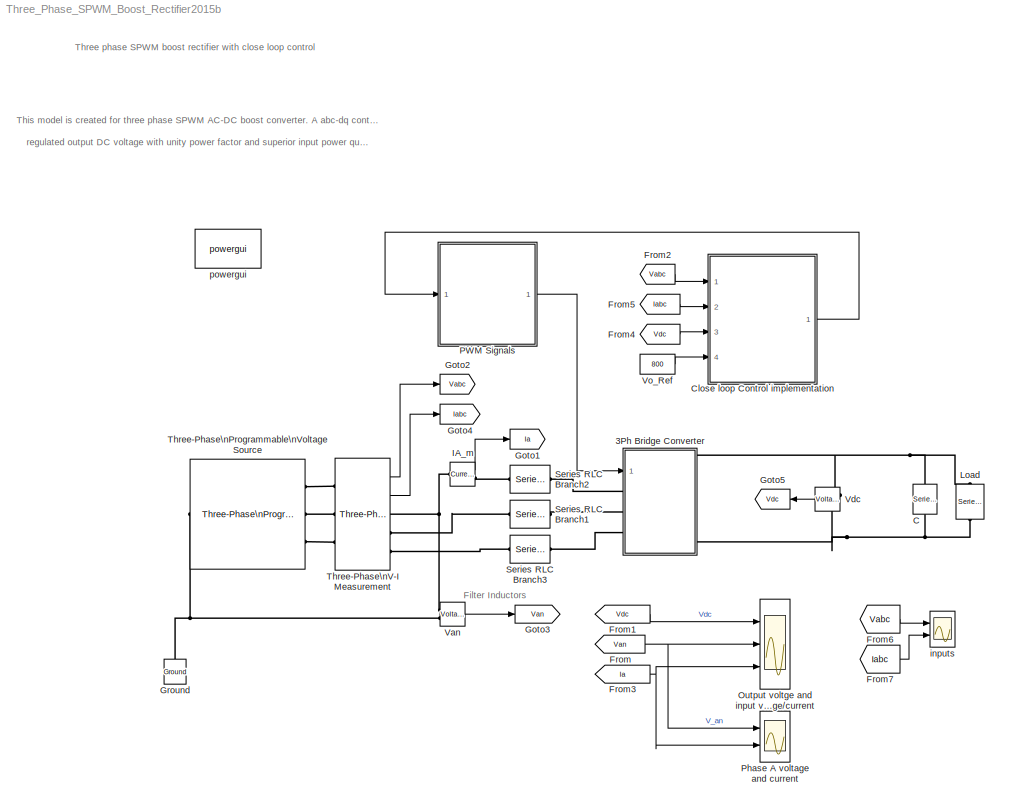
MODEL Three_Phase_SPWM_Boost_Rectifier2015b
KIND model
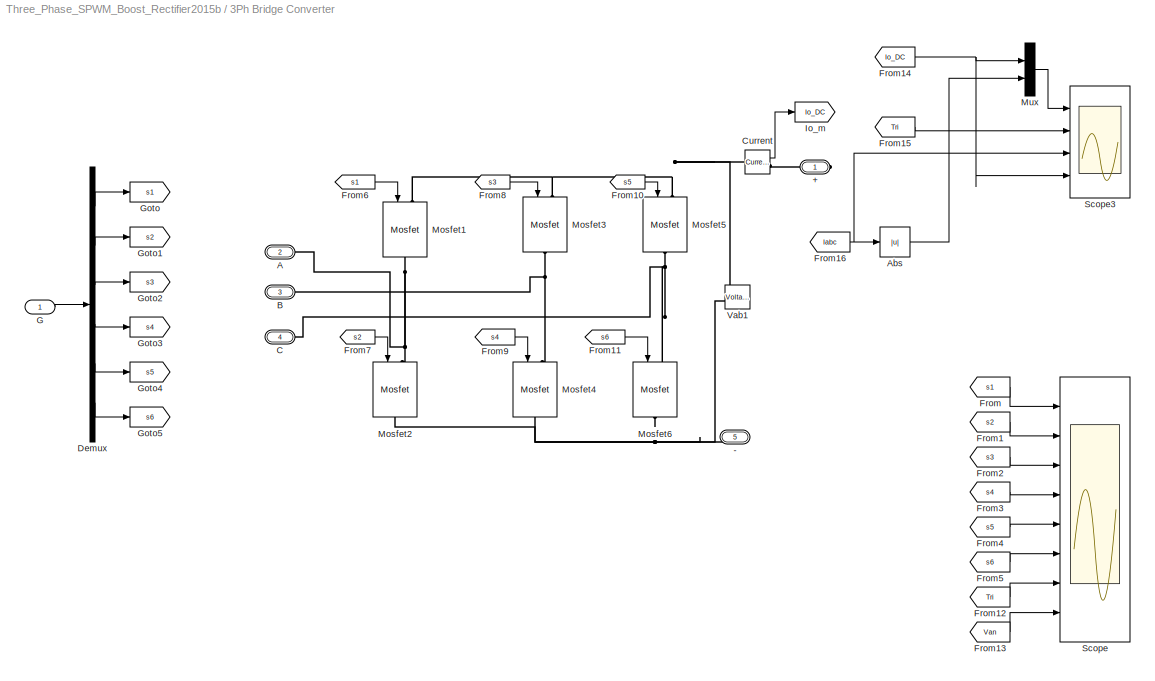
BLOCK [SubSystem] 3Ph Bridge Converter
  Ports = [1, 0, 0, 0, 0, 3, 2]
  RequestExecContextInheritance = off
  SID = 356
  Variant = off
BLOCK [PMIOPort] 3Ph Bridge Converter/+
  Port = 1
  SID = 377
  Side = Right
BLOCK [PMIOPort] 3Ph Bridge Converter/-
  Port = 5
  SID = 573
  Side = Right
BLOCK [PMIOPort] 3Ph Bridge Converter/A
  Port = 2
  SID = 378
  Side = Left
BLOCK [Abs] 3Ph Bridge Converter/Abs
  SID = 713
  SaturateOnIntegerOverflow = off
BLOCK [PMIOPort] 3Ph Bridge Converter/B
  Port = 3
  SID = 379
  Side = Left
BLOCK [PMIOPort] 3Ph Bridge Converter/C
  Port = 4
  SID = 380
  Side = Left
BLOCK [Reference] 3Ph Bridge Converter/Current  REF=powerlib/Measurements/Current Measurement
  OutputType = Complex
  PSBequivalent = 0
  PhasorSimulation = off
  Ports = [0, 1, 0, 0, 0, 1, 1]
  SID = 619
  SourceBlock = powerlib/Measurements/Current Measurement
  SourceType = Current Measurement
BLOCK [Demux] 3Ph Bridge Converter/Demux
  DisplayOption = bar
  Outputs = 6
  Ports = [1, 6]
  SID = 358
BLOCK [From] 3Ph Bridge Converter/From
  GotoTag = s1
  SID = 698
BLOCK [From] 3Ph Bridge Converter/From1
  GotoTag = s2
  SID = 699
BLOCK [From] 3Ph Bridge Converter/From10
  CloseFcn = tagdialog Close
  GotoTag = s5
  SID = 359
BLOCK [From] 3Ph Bridge Converter/From11
  CloseFcn = tagdialog Close
  GotoTag = s6
  SID = 360
BLOCK [From] 3Ph Bridge Converter/From12
  GotoTag = Tri
  SID = 705
  TagVisibility = global
BLOCK [From] 3Ph Bridge Converter/From13
  GotoTag = Van
  SID = 706
  TagVisibility = global
BLOCK [From] 3Ph Bridge Converter/From14
  GotoTag = Io_DC
  SID = 708
BLOCK [From] 3Ph Bridge Converter/From15
  GotoTag = Tri
  SID = 709
  TagVisibility = global
BLOCK [From] 3Ph Bridge Converter/From16
  GotoTag = Iabc
  SID = 710
  TagVisibility = global
BLOCK [From] 3Ph Bridge Converter/From2
  GotoTag = s3
  SID = 700
BLOCK [From] 3Ph Bridge Converter/From3
  GotoTag = s4
  SID = 701
BLOCK [From] 3Ph Bridge Converter/From4
  GotoTag = s5
  SID = 702
BLOCK [From] 3Ph Bridge Converter/From5
  GotoTag = s6
  SID = 703
BLOCK [From] 3Ph Bridge Converter/From6
  CloseFcn = tagdialog Close
  GotoTag = s1
  SID = 361
BLOCK [From] 3Ph Bridge Converter/From7
  CloseFcn = tagdialog Close
  GotoTag = s2
  SID = 362
BLOCK [From] 3Ph Bridge Converter/From8
  CloseFcn = tagdialog Close
  GotoTag = s3
  SID = 363
BLOCK [From] 3Ph Bridge Converter/From9
  CloseFcn = tagdialog Close
  GotoTag = s4
  SID = 364
BLOCK [Inport] 3Ph Bridge Converter/G
  IconDisplay = Port number
  SID = 357
BLOCK [Goto] 3Ph Bridge Converter/Goto
  GotoTag = s1
  SID = 365
BLOCK [Goto] 3Ph Bridge Converter/Goto1
  GotoTag = s2
  SID = 366
BLOCK [Goto] 3Ph Bridge Converter/Goto2
  GotoTag = s3
  SID = 367
BLOCK [Goto] 3Ph Bridge Converter/Goto3
  GotoTag = s4
  SID = 368
BLOCK [Goto] 3Ph Bridge Converter/Goto4
  GotoTag = s5
  SID = 369
BLOCK [Goto] 3Ph Bridge Converter/Goto5
  GotoTag = s6
  SID = 370
BLOCK [Goto] 3Ph Bridge Converter/Io_m
  GotoTag = Io_DC
  SID = 652
BLOCK [Reference] 3Ph Bridge Converter/Mosfet1  REF=powerlib/Power\nElectronics/Mosfet
  Cs = inf
  IC = 0
  Lon = 0
  Measurements = off
  Ports = [1, 0, 0, 0, 0, 1, 1]
  Rd = 0.01
  Ron = 0.1
  Rs = 1e5
  SID = 371
  SourceBlock = powerlib/Power\nElectronics/Mosfet
  SourceType = Mosfet
  Vfd = 0
BLOCK [Reference] 3Ph Bridge Converter/Mosfet2  REF=powerlib/Power\nElectronics/Mosfet
  Cs = inf
  IC = 0
  Lon = 0
  Measurements = off
  Ports = [1, 0, 0, 0, 0, 1, 1]
  Rd = 0.01
  Ron = 0.1
  Rs = 1e5
  SID = 372
  SourceBlock = powerlib/Power\nElectronics/Mosfet
  SourceType = Mosfet
  Vfd = 0
BLOCK [Reference] 3Ph Bridge Converter/Mosfet3  REF=powerlib/Power\nElectronics/Mosfet
  Cs = inf
  IC = 0
  Lon = 0
  Measurements = off
  Ports = [1, 0, 0, 0, 0, 1, 1]
  Rd = 0.01
  Ron = 0.1
  Rs = 1e5
  SID = 375
  SourceBlock = powerlib/Power\nElectronics/Mosfet
  SourceType = Mosfet
  Vfd = 0
BLOCK [Reference] 3Ph Bridge Converter/Mosfet4  REF=powerlib/Power\nElectronics/Mosfet
  Cs = inf
  IC = 0
  Lon = 0
  Measurements = off
  Ports = [1, 0, 0, 0, 0, 1, 1]
  Rd = 0.01
  Ron = 0.1
  Rs = 1e5
  SID = 376
  SourceBlock = powerlib/Power\nElectronics/Mosfet
  SourceType = Mosfet
  Vfd = 0
BLOCK [Reference] 3Ph Bridge Converter/Mosfet5  REF=powerlib/Power\nElectronics/Mosfet
  Cs = inf
  IC = 0
  Lon = 0
  Measurements = off
  Ports = [1, 0, 0, 0, 0, 1, 1]
  Rd = 0.01
  Ron = 0.1
  Rs = 1e5
  SID = 374
  SourceBlock = powerlib/Power\nElectronics/Mosfet
  SourceType = Mosfet
  Vfd = 0
BLOCK [Reference] 3Ph Bridge Converter/Mosfet6  REF=powerlib/Power\nElectronics/Mosfet
  Cs = inf
  IC = 0
  Lon = 0
  Measurements = off
  Ports = [1, 0, 0, 0, 0, 1, 1]
  Rd = 0.01
  Ron = 0.1
  Rs = 1e5
  SID = 373
  SourceBlock = powerlib/Power\nElectronics/Mosfet
  SourceType = Mosfet
  Vfd = 0
BLOCK [Mux] 3Ph Bridge Converter/Mux
  DisplayOption = bar
  Inputs = 2
  Ports = [2, 1]
  SID = 712
BLOCK [Scope] 3Ph Bridge Converter/Scope
  NumInputPorts = 8
  Ports = [8]
  SID = 697
  ScopeSpecificationString = Simulink.scopes.TimeScopeBlockCfg('CurrentConfiguration', extmgr.ConfigurationSet(extmgr.Configuration('Core','General UI',true,'FigureColor',[0.156862745098039 0.156862745098039 0.156862745098039]),extmgr.Configuration('Core','Source UI',true),extmgr.Configuration('Sources','WiredSimulink',true,'DataLoggingVariableName','ScopeData6','DataLoggingSaveFormat','StructureWithTime','DataLoggingMaxPoint...<+11269ch>
BLOCK [Scope] 3Ph Bridge Converter/Scope3
  NumInputPorts = 4
  Ports = [4]
  SID = 707
  ScopeSpecificationString = Simulink.scopes.TimeScopeBlockCfg('CurrentConfiguration', extmgr.ConfigurationSet(extmgr.Configuration('Core','General UI',true,'FigureColor',[0.156862745098039 0.156862745098039 0.156862745098039]),extmgr.Configuration('Core','Source UI',true),extmgr.Configuration('Sources','WiredSimulink',true,'DataLoggingVariableName','ScopeData10','DataLoggingSaveFormat','StructureWithTime','DataLoggingMaxPoin...<+6465ch>
BLOCK [Reference] 3Ph Bridge Converter/Vab1  REF=powerlib/Measurements/Voltage Measurement
  AttributesFormatString = \\n
  OutputType = Magnitude
  PSBequivalent = 0
  PhasorSimulation = off
  Ports = [0, 1, 0, 0, 0, 2]
  SID = 711
  SourceBlock = powerlib/Measurements/Voltage Measurement
  SourceType = Voltage Measurement
  Tag = PoWeRsYsTeMmEaSuReMeNt
BLOCK [Reference] C  REF=powerlib/Elements/Series RLC Branch
  BranchType = C
  Capacitance = 1000e-6
  Inductance = 1e-3
  InitialCurrent = 0
  InitialVoltage = 0
  LConnTagsString = __new0
  Measurements = None
  Ports = [0, 0, 0, 0, 0, 1, 1]
  RConnTagsString = __new0
  Resistance = 1
  SID = 578
  SetiL0 = off
  Setx0 = off
  SourceBlock = powerlib/Elements/Series RLC Branch
  SourceType = Series RLC Branch
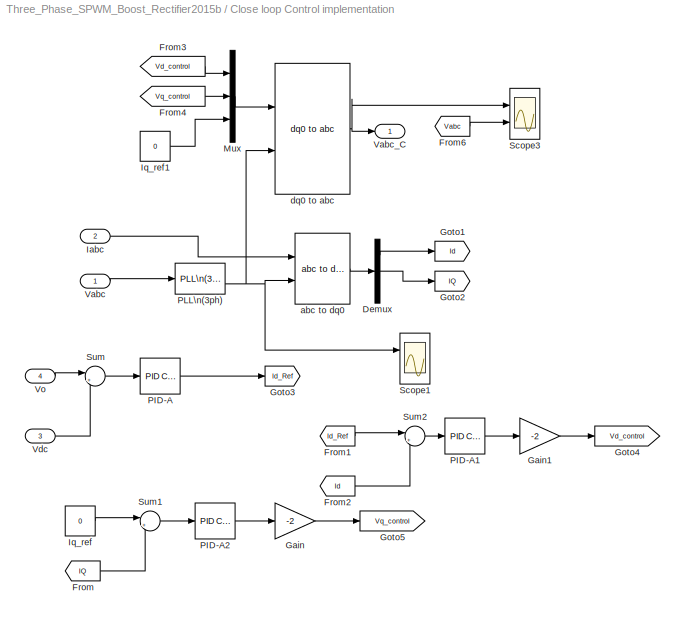
BLOCK [SubSystem] Close loop Control implementation
  Ports = [4, 1]
  RequestExecContextInheritance = off
  SID = 656
  Variant = off
BLOCK [Demux] Close loop Control implementation/Demux
  DisplayOption = bar
  Outputs = 3
  Ports = [1, 3]
  SID = 664
BLOCK [From] Close loop Control implementation/From
  GotoTag = IQ
  SID = 673
  TagVisibility = global
BLOCK [From] Close loop Control implementation/From1
  GotoTag = Id_Ref
  SID = 676
  TagVisibility = global
BLOCK [From] Close loop Control implementation/From2
  GotoTag = Id
  SID = 677
  TagVisibility = global
BLOCK [From] Close loop Control implementation/From3
  GotoTag = Vd_control
  SID = 682
  TagVisibility = global
BLOCK [From] Close loop Control implementation/From4
  GotoTag = Vq_control
  SID = 683
  TagVisibility = global
BLOCK [From] Close loop Control implementation/From6
  GotoTag = Vabc
  SID = 694
  TagVisibility = global
BLOCK [Gain] Close loop Control implementation/Gain
  Gain = -2
  OutDataTypeStr = Inherit: Inherit via internal rule
  ParamDataTypeStr = Inherit: Inherit via internal rule
  SID = 691
  SaturateOnIntegerOverflow = off
BLOCK [Gain] Close loop Control implementation/Gain1
  Gain = -2
  OutDataTypeStr = Inherit: Inherit via internal rule
  ParamDataTypeStr = Inherit: Inherit via internal rule
  SID = 692
  SaturateOnIntegerOverflow = off
BLOCK [Goto] Close loop Control implementation/Goto1
  GotoTag = Id
  SID = 665
  TagVisibility = global
BLOCK [Goto] Close loop Control implementation/Goto2
  GotoTag = IQ
  SID = 666
  TagVisibility = global
BLOCK [Goto] Close loop Control implementation/Goto3
  GotoTag = Id_Ref
  SID = 670
  TagVisibility = global
BLOCK [Goto] Close loop Control implementation/Goto4
  GotoTag = Vd_control
  SID = 679
  TagVisibility = global
BLOCK [Goto] Close loop Control implementation/Goto5
  GotoTag = Vq_control
  SID = 680
  TagVisibility = global
BLOCK [Inport] Close loop Control implementation/Iabc
  IconDisplay = Port number
  Port = 2
  SID = 663
BLOCK [Constant] Close loop Control implementation/Iq_ref
  SID = 672
  Value = 0
BLOCK [Constant] Close loop Control implementation/Iq_ref1
  SID = 684
  Value = 0
BLOCK [Mux] Close loop Control implementation/Mux
  DisplayOption = bar
  Inputs = 3
  Ports = [3, 1]
  SID = 681
BLOCK [Reference] Close loop Control implementation/PID-A  REF=simulink/Continuous/PID Controller
  AntiWindupMode = none
  Controller = PID
  ControllerParametersSource = internal
  D = 0
  DGainOutDataTypeStr = Inherit: Inherit via internal rule
  DOutDataTypeStr = Inherit: Inherit via internal rule
  DOutMax = []
  DOutMin = []
  DParamDataTypeStr = Inherit: Inherit via internal rule
  DParamMax = []
  DParamMin = []
  DProdOutDataTypeStr = Inherit: Inherit via internal rule
  DifferentiatorICPrevScaledInput = 0
  DifferentiatorOutDataTypeStr = Inherit: Inherit via internal rule
  DifferentiatorOutMax = []
  DifferentiatorOutMin = []
  ExternalReset = none
  FilterContinuousStateAttributes = ''
  FilterMethod = Forward Euler
  FilterOutDataTypeStr = Inherit: Inherit via internal rule
  FilterOutMax = []
  FilterOutMin = []
  FilterRTWStateStorageClass = Auto
  FilterStateMustResolveToSignalObject = off
  Form = Parallel
  I = 0.2/0.002
  IGainOutDataTypeStr = Inherit: Inherit via internal rule
  IOutDataTypeStr = Inherit: Inherit via internal rule
  IOutMax = []
  IOutMin = []
  IParamDataTypeStr = Inherit: Inherit via internal rule
  IParamMax = []
  IParamMin = []
  IProdOutDataTypeStr = Inherit: Inherit via internal rule
  IgnoreLimit = off
  InitialConditionForFilter = 0
  InitialConditionForIntegrator = 0
  InitialConditionSource = internal
  IntegratorContinuousStateAttributes = ''
  IntegratorMethod = Forward Euler
  IntegratorOutDataTypeStr = Inherit: Inherit via internal rule
  IntegratorOutMax = []
  IntegratorOutMin = []
  IntegratorRTWStateStorageClass = Auto
  IntegratorStateMustResolveToSignalObject = off
  Kb = 1
  KbOutDataTypeStr = Inherit: Inherit via internal rule
  KbOutMax = []
  KbOutMin = []
  KbParamDataTypeStr = Inherit: Inherit via internal rule
  KbParamMax = []
  KbParamMin = []
  Kt = 1
  KtOutDataTypeStr = Inherit: Inherit via internal rule
  KtOutMax = []
  KtOutMin = []
  KtParamDataTypeStr = Inherit: Inherit via internal rule
  KtParamMax = []
  KtParamMin = []
  LimitOutput = off
  LinearizeAsGain = on
  LockScale = off
  LowerSaturationLimit = -inf
  N = 100
  NGainOutDataTypeStr = Inherit: Inherit via internal rule
  NOutDataTypeStr = Inherit: Inherit via internal rule
  NOutMax = []
  NOutMin = []
  NParamDataTypeStr = Inherit: Inherit via internal rule
  NParamMax = []
  NParamMin = []
  NProdOutDataTypeStr = Inherit: Inherit via internal rule
  P = 0.2
  PGainOutDataTypeStr = Inherit: Inherit via internal rule
  POutDataTypeStr = Inherit: Inherit via internal rule
  POutMax = []
  POutMin = []
  PParamDataTypeStr = Inherit: Inherit via internal rule
  PParamMax = []
  PParamMin = []
  PProdOutDataTypeStr = Inherit: Inherit via internal rule
  Ports = [1, 1]
  RndMeth = Floor
  SID = 662
  SampleTime = 2e-6
  SaturateOnIntegerOverflow = off
  SaturationOutDataTypeStr = Inherit: Same as input
  SaturationOutMax = []
  SaturationOutMin = []
  SourceBlock = simulink/Continuous/PID Controller
  SourceType = PID 1dof
  SumAccumDataTypeStr = Inherit: Inherit via internal rule
  SumDAccumDataTypeStr = Inherit: Inherit via internal rule
  SumDOutDataTypeStr = Inherit: Inherit via internal rule
  SumDOutMax = []
  SumDOutMin = []
  SumI1AccumDataTypeStr = Inherit: Inherit via internal rule
  SumI1OutDataTypeStr = Inherit: Inherit via internal rule
  SumI1OutMax = []
  SumI1OutMin = []
  SumI2AccumDataTypeStr = Inherit: Inherit via internal rule
  SumI2OutDataTypeStr = Inherit: Inherit via internal rule
  SumI2OutMax = []
  SumI2OutMin = []
  SumI3AccumDataTypeStr = Inherit: Inherit via internal rule
  SumI3OutDataTypeStr = Inherit: Inherit via internal rule
  SumI3OutMax = []
  SumI3OutMin = []
  SumOutDataTypeStr = Inherit: Inherit via internal rule
  SumOutMax = []
  SumOutMin = []
  TimeDomain = Discrete-time
  TrackingMode = off
  UpperSaturationLimit = inf
  UseFilter = on
  ZeroCross = on
BLOCK [Reference] Close loop Control implementation/PID-A1  REF=simulink/Continuous/PID Controller
  AntiWindupMode = none
  Controller = PID
  ControllerParametersSource = internal
  D = 0
  DGainOutDataTypeStr = Inherit: Inherit via internal rule
  DOutDataTypeStr = Inherit: Inherit via internal rule
  DOutMax = []
  DOutMin = []
  DParamDataTypeStr = Inherit: Inherit via internal rule
  DParamMax = []
  DParamMin = []
  DProdOutDataTypeStr = Inherit: Inherit via internal rule
  DifferentiatorICPrevScaledInput = 0
  DifferentiatorOutDataTypeStr = Inherit: Inherit via internal rule
  DifferentiatorOutMax = []
  DifferentiatorOutMin = []
  ExternalReset = none
  FilterContinuousStateAttributes = ''
  FilterMethod = Forward Euler
  FilterOutDataTypeStr = Inherit: Inherit via internal rule
  FilterOutMax = []
  FilterOutMin = []
  FilterRTWStateStorageClass = Auto
  FilterStateMustResolveToSignalObject = off
  Form = Parallel
  I = 0.0231/1.172e-3
  IGainOutDataTypeStr = Inherit: Inherit via internal rule
  IOutDataTypeStr = Inherit: Inherit via internal rule
  IOutMax = []
  IOutMin = []
  IParamDataTypeStr = Inherit: Inherit via internal rule
  IParamMax = []
  IParamMin = []
  IProdOutDataTypeStr = Inherit: Inherit via internal rule
  IgnoreLimit = off
  InitialConditionForFilter = 0
  InitialConditionForIntegrator = 0
  InitialConditionSource = internal
  IntegratorContinuousStateAttributes = ''
  IntegratorMethod = Forward Euler
  IntegratorOutDataTypeStr = Inherit: Inherit via internal rule
  IntegratorOutMax = []
  IntegratorOutMin = []
  IntegratorRTWStateStorageClass = Auto
  IntegratorStateMustResolveToSignalObject = off
  Kb = 1
  KbOutDataTypeStr = Inherit: Inherit via internal rule
  KbOutMax = []
  KbOutMin = []
  KbParamDataTypeStr = Inherit: Inherit via internal rule
  KbParamMax = []
  KbParamMin = []
  Kt = 1
  KtOutDataTypeStr = Inherit: Inherit via internal rule
  KtOutMax = []
  KtOutMin = []
  KtParamDataTypeStr = Inherit: Inherit via internal rule
  KtParamMax = []
  KtParamMin = []
  LimitOutput = off
  LinearizeAsGain = on
  LockScale = off
  LowerSaturationLimit = -inf
  N = 100
  NGainOutDataTypeStr = Inherit: Inherit via internal rule
  NOutDataTypeStr = Inherit: Inherit via internal rule
  NOutMax = []
  NOutMin = []
  NParamDataTypeStr = Inherit: Inherit via internal rule
  NParamMax = []
  NParamMin = []
  NProdOutDataTypeStr = Inherit: Inherit via internal rule
  P = 6.225/270
  PGainOutDataTypeStr = Inherit: Inherit via internal rule
  POutDataTypeStr = Inherit: Inherit via internal rule
  POutMax = []
  POutMin = []
  PParamDataTypeStr = Inherit: Inherit via internal rule
  PParamMax = []
  PParamMin = []
  PProdOutDataTypeStr = Inherit: Inherit via internal rule
  Ports = [1, 1]
  RndMeth = Floor
  SID = 690
  SampleTime = -1
  SaturateOnIntegerOverflow = off
  SaturationOutDataTypeStr = Inherit: Same as input
  SaturationOutMax = []
  SaturationOutMin = []
  SourceBlock = simulink/Continuous/PID Controller
  SourceType = PID 1dof
  SumAccumDataTypeStr = Inherit: Inherit via internal rule
  SumDAccumDataTypeStr = Inherit: Inherit via internal rule
  SumDOutDataTypeStr = Inherit: Inherit via internal rule
  SumDOutMax = []
  SumDOutMin = []
  SumI1AccumDataTypeStr = Inherit: Inherit via internal rule
  SumI1OutDataTypeStr = Inherit: Inherit via internal rule
  SumI1OutMax = []
  SumI1OutMin = []
  SumI2AccumDataTypeStr = Inherit: Inherit via internal rule
  SumI2OutDataTypeStr = Inherit: Inherit via internal rule
  SumI2OutMax = []
  SumI2OutMin = []
  SumI3AccumDataTypeStr = Inherit: Inherit via internal rule
  SumI3OutDataTypeStr = Inherit: Inherit via internal rule
  SumI3OutMax = []
  SumI3OutMin = []
  SumOutDataTypeStr = Inherit: Inherit via internal rule
  SumOutMax = []
  SumOutMin = []
  TimeDomain = Continuous-time
  TrackingMode = off
  UpperSaturationLimit = inf
  UseFilter = on
  ZeroCross = on
BLOCK [Reference] Close loop Control implementation/PID-A2  REF=simulink/Continuous/PID Controller
  AntiWindupMode = none
  Controller = PID
  ControllerParametersSource = internal
  D = 0
  DGainOutDataTypeStr = Inherit: Inherit via internal rule
  DOutDataTypeStr = Inherit: Inherit via internal rule
  DOutMax = []
  DOutMin = []
  DParamDataTypeStr = Inherit: Inherit via internal rule
  DParamMax = []
  DParamMin = []
  DProdOutDataTypeStr = Inherit: Inherit via internal rule
  DifferentiatorICPrevScaledInput = 0
  DifferentiatorOutDataTypeStr = Inherit: Inherit via internal rule
  DifferentiatorOutMax = []
  DifferentiatorOutMin = []
  ExternalReset = none
  FilterContinuousStateAttributes = ''
  FilterMethod = Forward Euler
  FilterOutDataTypeStr = Inherit: Inherit via internal rule
  FilterOutMax = []
  FilterOutMin = []
  FilterRTWStateStorageClass = Auto
  FilterStateMustResolveToSignalObject = off
  Form = Parallel
  I = 0.0231/1.172e-3
  IGainOutDataTypeStr = Inherit: Inherit via internal rule
  IOutDataTypeStr = Inherit: Inherit via internal rule
  IOutMax = []
  IOutMin = []
  IParamDataTypeStr = Inherit: Inherit via internal rule
  IParamMax = []
  IParamMin = []
  IProdOutDataTypeStr = Inherit: Inherit via internal rule
  IgnoreLimit = off
  InitialConditionForFilter = 0
  InitialConditionForIntegrator = 0
  InitialConditionSource = internal
  IntegratorContinuousStateAttributes = ''
  IntegratorMethod = Forward Euler
  IntegratorOutDataTypeStr = Inherit: Inherit via internal rule
  IntegratorOutMax = []
  IntegratorOutMin = []
  IntegratorRTWStateStorageClass = Auto
  IntegratorStateMustResolveToSignalObject = off
  Kb = 1
  KbOutDataTypeStr = Inherit: Inherit via internal rule
  KbOutMax = []
  KbOutMin = []
  KbParamDataTypeStr = Inherit: Inherit via internal rule
  KbParamMax = []
  KbParamMin = []
  Kt = 1
  KtOutDataTypeStr = Inherit: Inherit via internal rule
  KtOutMax = []
  KtOutMin = []
  KtParamDataTypeStr = Inherit: Inherit via internal rule
  KtParamMax = []
  KtParamMin = []
  LimitOutput = off
  LinearizeAsGain = on
  LockScale = off
  LowerSaturationLimit = -inf
  N = 100
  NGainOutDataTypeStr = Inherit: Inherit via internal rule
  NOutDataTypeStr = Inherit: Inherit via internal rule
  NOutMax = []
  NOutMin = []
  NParamDataTypeStr = Inherit: Inherit via internal rule
  NParamMax = []
  NParamMin = []
  NProdOutDataTypeStr = Inherit: Inherit via internal rule
  P = 6.225/270
  PGainOutDataTypeStr = Inherit: Inherit via internal rule
  POutDataTypeStr = Inherit: Inherit via internal rule
  POutMax = []
  POutMin = []
  PParamDataTypeStr = Inherit: Inherit via internal rule
  PParamMax = []
  PParamMin = []
  PProdOutDataTypeStr = Inherit: Inherit via internal rule
  Ports = [1, 1]
  RndMeth = Floor
  SID = 674
  SampleTime = -1
  SaturateOnIntegerOverflow = off
  SaturationOutDataTypeStr = Inherit: Same as input
  SaturationOutMax = []
  SaturationOutMin = []
  SourceBlock = simulink/Continuous/PID Controller
  SourceType = PID 1dof
  SumAccumDataTypeStr = Inherit: Inherit via internal rule
  SumDAccumDataTypeStr = Inherit: Inherit via internal rule
  SumDOutDataTypeStr = Inherit: Inherit via internal rule
  SumDOutMax = []
  SumDOutMin = []
  SumI1AccumDataTypeStr = Inherit: Inherit via internal rule
  SumI1OutDataTypeStr = Inherit: Inherit via internal rule
  SumI1OutMax = []
  SumI1OutMin = []
  SumI2AccumDataTypeStr = Inherit: Inherit via internal rule
  SumI2OutDataTypeStr = Inherit: Inherit via internal rule
  SumI2OutMax = []
  SumI2OutMin = []
  SumI3AccumDataTypeStr = Inherit: Inherit via internal rule
  SumI3OutDataTypeStr = Inherit: Inherit via internal rule
  SumI3OutMax = []
  SumI3OutMin = []
  SumOutDataTypeStr = Inherit: Inherit via internal rule
  SumOutMax = []
  SumOutMin = []
  TimeDomain = Continuous-time
  TrackingMode = off
  UpperSaturationLimit = inf
  UseFilter = on
  ZeroCross = on
BLOCK [Reference] Close loop Control implementation/PLL\n(3ph)  REF=powerlib_meascontrol/PLL/PLL\n(3ph)
  AGC = on
  FilterCutOffFreq = 25
  Fmin = 45
  MaxRateChangeFreq = 12
  ParK = [180, 3200, 1]
  Par_Init = [0, 60]
  Ports = [1, 2]
  SID = 653
  SourceBlock = powerlib_meascontrol/PLL/PLL\n(3ph)
  SourceType = PLL (3ph)
  TcD = 1e-4
  Ts = 0
BLOCK [Scope] Close loop Control implementation/Scope1
  NumInputPorts = 2
  Ports = [2]
  SID = 695
  ScopeSpecificationString = Simulink.scopes.TimeScopeBlockCfg('CurrentConfiguration', extmgr.ConfigurationSet(extmgr.Configuration('Core','General UI',true,'FigureColor',[0.156862745098039 0.156862745098039 0.156862745098039]),extmgr.Configuration('Core','Source UI',true),extmgr.Configuration('Sources','WiredSimulink',true,'DataLogging',true,'DataLoggingVariableName','ScopeData5','DataLoggingSaveFormat','StructureWithTime','...<+4056ch>
BLOCK [Scope] Close loop Control implementation/Scope3
  NumInputPorts = 2
  Ports = [2]
  SID = 693
  ScopeSpecificationString = Simulink.scopes.TimeScopeBlockCfg('CurrentConfiguration', extmgr.ConfigurationSet(extmgr.Configuration('Core','General UI',true,'FigureColor',[0.156862745098039 0.156862745098039 0.156862745098039]),extmgr.Configuration('Core','Source UI',true),extmgr.Configuration('Sources','WiredSimulink',true,'DataLogging',true,'DataLoggingVariableName','ScopeData4','DataLoggingSaveFormat','StructureWithTime','...<+4060ch>
BLOCK [Sum] Close loop Control implementation/Sum
  IconShape = round
  InputSameDT = off
  Inputs = |+-
  OutDataTypeStr = Inherit: Inherit via internal rule
  Ports = [2, 1]
  SID = 669
  SaturateOnIntegerOverflow = off
BLOCK [Sum] Close loop Control implementation/Sum1
  IconShape = round
  InputSameDT = off
  Inputs = |+-
  OutDataTypeStr = Inherit: Inherit via internal rule
  Ports = [2, 1]
  SID = 671
  SaturateOnIntegerOverflow = off
BLOCK [Sum] Close loop Control implementation/Sum2
  IconShape = round
  InputSameDT = off
  Inputs = |+-
  OutDataTypeStr = Inherit: Inherit via internal rule
  Ports = [2, 1]
  SID = 675
  SaturateOnIntegerOverflow = off
BLOCK [Inport] Close loop Control implementation/Vabc
  IconDisplay = Port number
  SID = 657
BLOCK [Outport] Close loop Control implementation/Vabc_C
  IconDisplay = Port number
  SID = 685
BLOCK [Inport] Close loop Control implementation/Vdc
  IconDisplay = Port number
  Port = 3
  SID = 667
BLOCK [Inport] Close loop Control implementation/Vo
  IconDisplay = Port number
  Port = 4
  SID = 720
BLOCK [Reference] Close loop Control implementation/abc to dq0  REF=powerlib_meascontrol/Transformations/abc to dq0
  Alignment = 90 degrees behind phase A axis
  Ports = [2, 1]
  SID = 660
  SourceBlock = powerlib_meascontrol/Transformations/abc to dq0
  SourceType = abc to dq0 Transformation
BLOCK [Reference] Close loop Control implementation/dq0 to abc  REF=powerlib_meascontrol/Transformations/dq0 to abc
  Alignment = 90 degrees behind phase A axis
  Ports = [2, 1]
  SID = 661
  SourceBlock = powerlib_meascontrol/Transformations/dq0 to abc
  SourceType = dq0 to abc Transformation
BLOCK [From] From
  GotoTag = Van
  SID = 624
  TagVisibility = global
BLOCK [From] From1
  GotoTag = Vdc
  SID = 43
  TagVisibility = global
BLOCK [From] From2
  GotoTag = Vabc
  SID = 655
  TagVisibility = global
BLOCK [From] From3
  GotoTag = Ia
  SID = 589
  TagVisibility = global
BLOCK [From] From4
  GotoTag = Vdc
  SID = 686
  TagVisibility = global
BLOCK [From] From5
  GotoTag = Iabc
  SID = 689
  TagVisibility = global
BLOCK [From] From6
  GotoTag = Vabc
  SID = 716
  TagVisibility = global
BLOCK [From] From7
  GotoTag = Iabc
  SID = 717
  TagVisibility = global
BLOCK [Goto] Goto1
  GotoTag = Ia
  SID = 623
  TagVisibility = global
BLOCK [Goto] Goto2
  GotoTag = Vabc
  SID = 654
  TagVisibility = global
BLOCK [Goto] Goto3
  GotoTag = Van
  SID = 602
  TagVisibility = global
BLOCK [Goto] Goto4
  GotoTag = Iabc
  SID = 688
  TagVisibility = global
BLOCK [Goto] Goto5
  GotoTag = Vdc
  SID = 21
  TagVisibility = global
BLOCK [Reference] Ground  REF=powerlib/Elements/Ground
  LConnTagsString = a
  Ports = [0, 0, 0, 0, 0, 1]
  SID = 627
  SourceBlock = powerlib/Elements/Ground
  SourceType = Ground
BLOCK [Reference] IA_m  REF=powerlib/Measurements/Current Measurement
  OutputType = Complex
  PSBequivalent = 0
  PhasorSimulation = off
  Ports = [0, 1, 0, 0, 0, 1, 1]
  SID = 622
  SourceBlock = powerlib/Measurements/Current Measurement
  SourceType = Current Measurement
BLOCK [Reference] Load  REF=powerlib/Elements/Series RLC Branch
  BranchType = R
  Capacitance = 0
  Inductance = 1e-3
  InitialCurrent = 0
  InitialVoltage = 0
  LConnTagsString = __new0
  Measurements = None
  Ports = [0, 0, 0, 0, 0, 1, 1]
  RConnTagsString = __new0
  Resistance = 10
  SID = 558
  SetiL0 = off
  Setx0 = off
  SourceBlock = powerlib/Elements/Series RLC Branch
  SourceType = Series RLC Branch
BLOCK [Scope] Output voltge and input voltage//current
  NumInputPorts = 3
  Ports = [3]
  SID = 714
  ScopeSpecificationString = Simulink.scopes.TimeScopeBlockCfg('CurrentConfiguration', extmgr.ConfigurationSet(extmgr.Configuration('Core','General UI',true),extmgr.Configuration('Core','Source UI',true),extmgr.Configuration('Sources','WiredSimulink',true,'DataLoggingDecimation','1','DataLoggingDecimateData',true,'DataLoggingSaveFormat','StructureWithTime','DataLoggingMaxPoints','1000000'),extmgr.Configuration('Visuals','Time...<+5037ch>
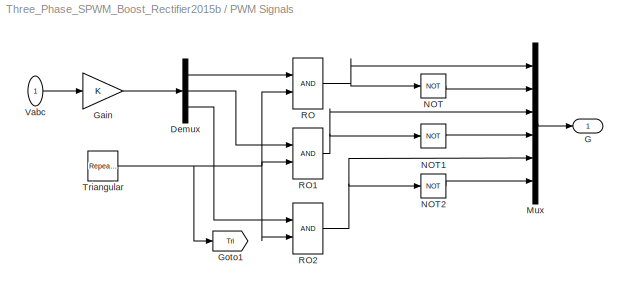
BLOCK [SubSystem] PWM Signals
  Ports = [1, 1]
  RequestExecContextInheritance = off
  SID = 634
  Variant = off
BLOCK [Demux] PWM Signals/Demux
  DisplayOption = bar
  Outputs = 3
  Ports = [1, 3]
  SID = 636
BLOCK [Outport] PWM Signals/G
  IconDisplay = Port number
  SID = 648
BLOCK [Gain] PWM Signals/Gain
  OutDataTypeStr = Inherit: Inherit via internal rule
  ParamDataTypeStr = Inherit: Inherit via internal rule
  SID = 628
  SaturateOnIntegerOverflow = off
BLOCK [Goto] PWM Signals/Goto1
  GotoTag = Tri
  SID = 704
  TagVisibility = global
BLOCK [Mux] PWM Signals/Mux
  DisplayOption = bar
  Inputs = 6
  Ports = [6, 1]
  SID = 643
BLOCK [Logic] PWM Signals/NOT
  AllPortsSameDT = off
  IconShape = distinctive
  Operator = NOT
  OutDataTypeStr = boolean
  Ports = [1, 1]
  SID = 642
BLOCK [Logic] PWM Signals/NOT1
  AllPortsSameDT = off
  IconShape = distinctive
  Operator = NOT
  OutDataTypeStr = boolean
  Ports = [1, 1]
  SID = 644
BLOCK [Logic] PWM Signals/NOT2
  AllPortsSameDT = off
  IconShape = distinctive
  Operator = NOT
  OutDataTypeStr = boolean
  Ports = [1, 1]
  SID = 645
BLOCK [RelationalOperator] PWM Signals/RO
  InputSameDT = off
  OutDataTypeStr = boolean
  Ports = [2, 1]
  SID = 638
BLOCK [RelationalOperator] PWM Signals/RO1
  InputSameDT = off
  OutDataTypeStr = boolean
  Ports = [2, 1]
  SID = 639
BLOCK [RelationalOperator] PWM Signals/RO2
  InputSameDT = off
  OutDataTypeStr = boolean
  Ports = [2, 1]
  SID = 640
BLOCK [Reference] PWM Signals/Triangular  REF=simulink/Sources/Repeating\nSequence
  Ports = [0, 1]
  SID = 637
  SourceBlock = simulink/Sources/Repeating\nSequence
  SourceType = Repeating table
  rep_seq_t = [0  1/(10e3) 1/(5e3) ]
  rep_seq_y = [-1 1 -1 ]
BLOCK [Inport] PWM Signals/Vabc
  IconDisplay = Port number
  SID = 635
BLOCK [Scope] Phase A voltage and current
  NumInputPorts = 2
  Ports = [2]
  SID = 715
  ScopeSpecificationString = Simulink.scopes.TimeScopeBlockCfg('CurrentConfiguration', extmgr.ConfigurationSet(extmgr.Configuration('Core','General UI',true),extmgr.Configuration('Core','Source UI',true),extmgr.Configuration('Sources','WiredSimulink',true,'DataLoggingVariableName','ScopeData9','DataLoggingDecimation','1','DataLoggingDecimateData',true,'DataLoggingSaveFormat','StructureWithTime','DataLoggingMaxPoints','1000000...<+2114ch>
BLOCK [Reference] Series RLC Branch1  REF=powerlib/Elements/Series RLC Branch
  BranchType = RL
  Capacitance = 200e-6
  Inductance = 1e-3
  InitialCurrent = 0
  InitialVoltage = 0
  LConnTagsString = __new0
  Measurements = None
  Ports = [0, 0, 0, 0, 0, 1, 1]
  RConnTagsString = __new0
  Resistance = .1
  SID = 586
  SetiL0 = off
  Setx0 = off
  SourceBlock = powerlib/Elements/Series RLC Branch
  SourceType = Series RLC Branch
BLOCK [Reference] Series RLC Branch2  REF=powerlib/Elements/Series RLC Branch
  BranchType = RL
  Capacitance = 200e-6
  Inductance = 1e-3
  InitialCurrent = 0
  InitialVoltage = 0
  LConnTagsString = __new0
  Measurements = None
  Ports = [0, 0, 0, 0, 0, 1, 1]
  RConnTagsString = __new0
  Resistance = 0.1
  SID = 585
  SetiL0 = off
  Setx0 = off
  SourceBlock = powerlib/Elements/Series RLC Branch
  SourceType = Series RLC Branch
BLOCK [Reference] Series RLC Branch3  REF=powerlib/Elements/Series RLC Branch
  BranchType = RL
  Capacitance = 200e-6
  Inductance = 1e-3
  InitialCurrent = 0
  InitialVoltage = 0
  LConnTagsString = __new0
  Measurements = None
  Ports = [0, 0, 0, 0, 0, 1, 1]
  RConnTagsString = __new0
  Resistance = 0.1
  SID = 587
  SetiL0 = off
  Setx0 = off
  SourceBlock = powerlib/Elements/Series RLC Branch
  SourceType = Series RLC Branch
BLOCK [Reference] Three-Phase\nProgrammable\nVoltage Source  REF=powerlib/Electrical\nSources/Three-Phase\nProgrammable\nVoltage Source
  Amplitudes = [1 0.8 1.2 1.0]
  BusType = swing
  HarmonicA = [3 0.2 -25 0]
  HarmonicB = [2 0.15 35 2]
  HarmonicGeneration = off
  Ports = [0, 0, 0, 0, 0, 1, 3]
  PositiveSequence = [230*1.732  0 50]
  Pref = 0
  Qmax = inf
  Qmin = -inf
  Qref = 0
  SID = 621
  SourceBlock = powerlib/Electrical\nSources/Three-Phase\nProgrammable\nVoltage Source
  SourceType = Three-Phase Programmable Voltage Source
  TimeValues = [0 0.1 0.15 0.2]
  Timing = [0.05  3]
  VariationEntity = None
  VariationFrequency = 2
  VariationMagnitude = 0.3
  VariationPhaseA = off
  VariationRate = 10
  VariationStep = 0.5
  VariationTiming = [1 2]
  VariationType = Table of time-amplitude pairs
  VariationTypeAlt = Step
BLOCK [Reference] Three-Phase\nV-I Measurement  REF=powerlib/Measurements/Three-Phase\nV-I Measurement
  CurrentMeasurement = yes
  Ipu = off
  LabelI = Iabc
  LabelV = Vabc
  OutputType = Complex
  PSBequivalent = 0
  Pbase = 100e6
  PhasorSimulation = off
  Ports = [0, 2, 0, 0, 0, 3, 3]
  SID = 625
  SetLabelI = off
  SetLabelV = off
  SourceBlock = powerlib/Measurements/Three-Phase\nV-I Measurement
  SourceType = Three-Phase VI Measurement
  Vbase = 500e3
  VoltageMeasurement = phase-to-ground
  Vpu = off
  VpuLL = off
BLOCK [Reference] Van  REF=powerlib/Measurements/Voltage Measurement
  AttributesFormatString = \\n
  OutputType = Magnitude
  PSBequivalent = 0
  PhasorSimulation = off
  Ports = [0, 1, 0, 0, 0, 2]
  SID = 601
  SourceBlock = powerlib/Measurements/Voltage Measurement
  SourceType = Voltage Measurement
  Tag = PoWeRsYsTeMmEaSuReMeNt
BLOCK [Reference] Vdc   REF=powerlib/Measurements/Voltage Measurement
  AttributesFormatString = \\n
  OutputType = Magnitude
  PSBequivalent = 0
  PhasorSimulation = off
  Ports = [0, 1, 0, 0, 0, 2]
  SID = 23
  SourceBlock = powerlib/Measurements/Voltage Measurement
  SourceType = Voltage Measurement
  Tag = PoWeRsYsTeMmEaSuReMeNt
BLOCK [Constant] Vo_Ref
  SID = 668
  Value = 800
BLOCK [Scope] inputs
  NumInputPorts = 2
  Ports = [2]
  SID = 722
  ScopeSpecificationString = Simulink.scopes.TimeScopeBlockCfg('CurrentConfiguration', extmgr.ConfigurationSet(extmgr.Configuration('Core','General UI',true),extmgr.Configuration('Core','Source UI',true),extmgr.Configuration('Sources','WiredSimulink',true,'DataLoggingVariableName','ScopeData1','DataLoggingDecimation','1','DataLoggingDecimateData',true,'DataLoggingSaveFormat','StructureWithTime','DataLoggingMaxPoints','1000000...<+4241ch>
BLOCK [Reference] powergui  REF=powerlib/powergui
  CurrentSourceSwitches = off
  DisableRonSwitches = off
  DisableSnubberDevices = off
  DisableVfSwitches = off
  DisplayEquations = off
  DisplayStyle = 4
  EnableUseOfTLC = off
  ErrMax = 1e-4
  ExternalGateDelay = off
  Frange = [0:2:500]
  FreqAxis = on
  FunctionMessages = off
  HookPort = off
  Interpol = off
  Iterations = 50
  MaxFrequency = 650
  Pbase = 100e6
  Ports = []
  Priority = 1
  ResistiveCurrentMeasurement = off
  RestoreLinks = warning
  RmsSteady = 1
  SID = 2
  SPID = off
  SampleTime = 2e-6
  ShowGrid = off
  SolverType = Tustin
  SourceBlock = powerlib/powergui
  SourceType = PSB option menu block
  StartTime = 0.6
  SwTol = 0
  Ts = 100
  UnitsV = kV
  UnitsW = MW
  Xlog = on
  Ylog = off
  ZoomFFT = off
  buscounter = 0
  cycles = 4
  display = off
  echomessages = off
  frequency = 60
  frequencyindice = 50
  frequencyindicesteady = 1
  fundamental = 50
  methode = off
  save = off
  structure = ScopeData
  variable = ZData
  x0status = blocks
ANNOTATION (root): \n \n This model is created for three phase SPWM AC-DC boost converter. A abc-dq control loop is implemented for unity power factor. The proposed model provide \n regulated output DC voltage with unity power factor and superior input power quality. The input voltage is three phase 230 V rms, 50 Hz. The output voltage is \n 800 V DC.
ANNOTATION (root): \n \n Three phase SPWM boost rectifier with close loop control \n \n Created by : Amit Kumar Singh, National University of Singapore
ANNOTATION (root): \n \n Filter Inductors
LINE 3Ph Bridge Converter/Abs:1 -> 3Ph Bridge Converter/Mux:2
LINE 3Ph Bridge Converter/Current:1 -> 3Ph Bridge Converter/Io_m:1
LINE 3Ph Bridge Converter/Demux:1 -> 3Ph Bridge Converter/Goto:1
LINE 3Ph Bridge Converter/Demux:2 -> 3Ph Bridge Converter/Goto1:1
LINE 3Ph Bridge Converter/Demux:3 -> 3Ph Bridge Converter/Goto2:1
LINE 3Ph Bridge Converter/Demux:4 -> 3Ph Bridge Converter/Goto3:1
LINE 3Ph Bridge Converter/Demux:5 -> 3Ph Bridge Converter/Goto4:1
LINE 3Ph Bridge Converter/Demux:6 -> 3Ph Bridge Converter/Goto5:1
LINE 3Ph Bridge Converter/From10:1 -> 3Ph Bridge Converter/Mosfet5:1
LINE 3Ph Bridge Converter/From11:1 -> 3Ph Bridge Converter/Mosfet6:1
LINE 3Ph Bridge Converter/From12:1 -> 3Ph Bridge Converter/Scope:7
LINE 3Ph Bridge Converter/From13:1 -> 3Ph Bridge Converter/Scope:8
NET 3Ph Bridge Converter/From14:1 -> 3Ph Bridge Converter/Mux:1, 3Ph Bridge Converter/Scope3:4
LINE 3Ph Bridge Converter/From15:1 -> 3Ph Bridge Converter/Scope3:2
NET 3Ph Bridge Converter/From16:1 -> 3Ph Bridge Converter/Abs:1, 3Ph Bridge Converter/Scope3:3
LINE 3Ph Bridge Converter/From1:1 -> 3Ph Bridge Converter/Scope:2
LINE 3Ph Bridge Converter/From2:1 -> 3Ph Bridge Converter/Scope:3
LINE 3Ph Bridge Converter/From3:1 -> 3Ph Bridge Converter/Scope:4
LINE 3Ph Bridge Converter/From4:1 -> 3Ph Bridge Converter/Scope:5
LINE 3Ph Bridge Converter/From5:1 -> 3Ph Bridge Converter/Scope:6
LINE 3Ph Bridge Converter/From6:1 -> 3Ph Bridge Converter/Mosfet1:1
LINE 3Ph Bridge Converter/From7:1 -> 3Ph Bridge Converter/Mosfet2:1
LINE 3Ph Bridge Converter/From8:1 -> 3Ph Bridge Converter/Mosfet3:1
LINE 3Ph Bridge Converter/From9:1 -> 3Ph Bridge Converter/Mosfet4:1
LINE 3Ph Bridge Converter/From:1 -> 3Ph Bridge Converter/Scope:1
LINE 3Ph Bridge Converter/G:1 -> 3Ph Bridge Converter/Demux:1
LINE 3Ph Bridge Converter/Mux:1 -> 3Ph Bridge Converter/Scope3:1
LINE Close loop Control implementation/Demux:1 -> Close loop Control implementation/Goto1:1
LINE Close loop Control implementation/Demux:2 -> Close loop Control implementation/Goto2:1
LINE Close loop Control implementation/From1:1 -> Close loop Control implementation/Sum2:1
LINE Close loop Control implementation/From2:1 -> Close loop Control implementation/Sum2:2
LINE Close loop Control implementation/From3:1 -> Close loop Control implementation/Mux:1
LINE Close loop Control implementation/From4:1 -> Close loop Control implementation/Mux:2
LINE Close loop Control implementation/From6:1 -> Close loop Control implementation/Scope3:2
LINE Close loop Control implementation/From:1 -> Close loop Control implementation/Sum1:2
LINE Close loop Control implementation/Gain1:1 -> Close loop Control implementation/Goto4:1
LINE Close loop Control implementation/Gain:1 -> Close loop Control implementation/Goto5:1
LINE Close loop Control implementation/Iabc:1 -> Close loop Control implementation/abc to dq0:1
LINE Close loop Control implementation/Iq_ref1:1 -> Close loop Control implementation/Mux:3
LINE Close loop Control implementation/Iq_ref:1 -> Close loop Control implementation/Sum1:1
LINE Close loop Control implementation/Mux:1 -> Close loop Control implementation/dq0 to abc:1
LINE Close loop Control implementation/PID-A1:1 -> Close loop Control implementation/Gain1:1
LINE Close loop Control implementation/PID-A2:1 -> Close loop Control implementation/Gain:1
LINE Close loop Control implementation/PID-A:1 -> Close loop Control implementation/Goto3:1
NET Close loop Control implementation/PLL\n(3ph):2 -> Close loop Control implementation/Scope1:1, Close loop Control implementation/abc to dq0:2, Close loop Control implementation/dq0 to abc:2
LINE Close loop Control implementation/Sum1:1 -> Close loop Control implementation/PID-A2:1
LINE Close loop Control implementation/Sum2:1 -> Close loop Control implementation/PID-A1:1
LINE Close loop Control implementation/Sum:1 -> Close loop Control implementation/PID-A:1
LINE Close loop Control implementation/Vabc:1 -> Close loop Control implementation/PLL\n(3ph):1
LINE Close loop Control implementation/Vdc:1 -> Close loop Control implementation/Sum:2
LINE Close loop Control implementation/Vo:1 -> Close loop Control implementation/Sum:1
LINE Close loop Control implementation/abc to dq0:1 -> Close loop Control implementation/Demux:1
NET Close loop Control implementation/dq0 to abc:1 -> Close loop Control implementation/Scope3:1, Close loop Control implementation/Vabc_C:1
LINE Close loop Control implementation:1 -> PWM Signals:1
LINE From1:1 -> Output voltge and input voltage//current:1
LINE From2:1 -> Close loop Control implementation:1
NET From3:1 -> Output voltge and input voltage//current:3, Phase A voltage and current:2
LINE From4:1 -> Close loop Control implementation:3
LINE From5:1 -> Close loop Control implementation:2
LINE From6:1 -> inputs:1
LINE From7:1 -> inputs:2
NET From:1 -> Output voltge and input voltage//current:2, Phase A voltage and current:1
LINE IA_m:1 -> Goto1:1
LINE PWM Signals/Demux:1 -> PWM Signals/RO:1
LINE PWM Signals/Demux:2 -> PWM Signals/RO1:1
LINE PWM Signals/Demux:3 -> PWM Signals/RO2:1
LINE PWM Signals/Gain:1 -> PWM Signals/Demux:1
LINE PWM Signals/Mux:1 -> PWM Signals/G:1
LINE PWM Signals/NOT1:1 -> PWM Signals/Mux:4
LINE PWM Signals/NOT2:1 -> PWM Signals/Mux:6
LINE PWM Signals/NOT:1 -> PWM Signals/Mux:2
NET PWM Signals/RO1:1 -> PWM Signals/Mux:3, PWM Signals/NOT1:1
NET PWM Signals/RO2:1 -> PWM Signals/Mux:5, PWM Signals/NOT2:1
NET PWM Signals/RO:1 -> PWM Signals/Mux:1, PWM Signals/NOT:1
NET PWM Signals/Triangular:1 -> PWM Signals/Goto1:1, PWM Signals/RO1:2, PWM Signals/RO2:2, PWM Signals/RO:2
LINE PWM Signals/Vabc:1 -> PWM Signals/Gain:1
LINE PWM Signals:1 -> 3Ph Bridge Converter:1
LINE Three-Phase\nV-I Measurement:1 -> Goto2:1
LINE Three-Phase\nV-I Measurement:2 -> Goto4:1
LINE Van:1 -> Goto3:1
LINE Vdc :1 -> Goto5:1
LINE Vo_Ref:1 -> Close loop Control implementation:4
PLINE 3Ph Bridge Converter/+:RConn1 -- 3Ph Bridge Converter/Current:RConn1
PNET net1: 3Ph Bridge Converter/-:RConn1 -- 3Ph Bridge Converter/Mosfet2:RConn1 -- 3Ph Bridge Converter/Mosfet4:RConn1 -- 3Ph Bridge Converter/Mosfet6:RConn1 -- 3Ph Bridge Converter/Vab1:LConn2
PNET net2: 3Ph Bridge Converter/A:RConn1 -- 3Ph Bridge Converter/Mosfet1:RConn1 -- 3Ph Bridge Converter/Mosfet2:LConn1
PNET net3: 3Ph Bridge Converter/B:RConn1 -- 3Ph Bridge Converter/Mosfet3:RConn1 -- 3Ph Bridge Converter/Mosfet4:LConn1
PNET net4: 3Ph Bridge Converter/C:RConn1 -- 3Ph Bridge Converter/Mosfet5:RConn1 -- 3Ph Bridge Converter/Mosfet6:LConn1
PNET net5: 3Ph Bridge Converter/Current:LConn1 -- 3Ph Bridge Converter/Mosfet1:LConn1 -- 3Ph Bridge Converter/Mosfet3:LConn1 -- 3Ph Bridge Converter/Mosfet5:LConn1 -- 3Ph Bridge Converter/Vab1:LConn1
PLINE 3Ph Bridge Converter:LConn1 -- Series RLC Branch2:LConn1
PLINE 3Ph Bridge Converter:LConn2 -- Series RLC Branch1:LConn1
PLINE 3Ph Bridge Converter:LConn3 -- Series RLC Branch3:LConn1
PNET net6: 3Ph Bridge Converter:RConn1 -- C:LConn1 -- Load:LConn1 -- Vdc :LConn1
PNET net7: 3Ph Bridge Converter:RConn2 -- C:RConn1 -- Load:RConn1 -- Vdc :LConn2
PNET net8: Ground:LConn1 -- Three-Phase\nProgrammable\nVoltage Source:LConn1 -- Van:LConn2
PNET net9: IA_m:LConn1 -- Three-Phase\nV-I Measurement:RConn1 -- Van:LConn1
PLINE IA_m:RConn1 -- Series RLC Branch2:RConn1
PLINE Series RLC Branch1:RConn1 -- Three-Phase\nV-I Measurement:RConn2
PLINE Series RLC Branch3:RConn1 -- Three-Phase\nV-I Measurement:RConn3
PLINE Three-Phase\nProgrammable\nVoltage Source:RConn1 -- Three-Phase\nV-I Measurement:LConn1
PLINE Three-Phase\nProgrammable\nVoltage Source:RConn2 -- Three-Phase\nV-I Measurement:LConn2
PLINE Three-Phase\nProgrammable\nVoltage Source:RConn3 -- Three-Phase\nV-I Measurement:LConn3
note: NET lines group one-source signal fan-out (src -> all destinations, sorted); 1:1 wires keep LINE; PNET lines group multi-terminal physical nets as a canonical sorted terminal list (undirected conserving connections); 2-terminal nets keep the pairwise PLINE form
